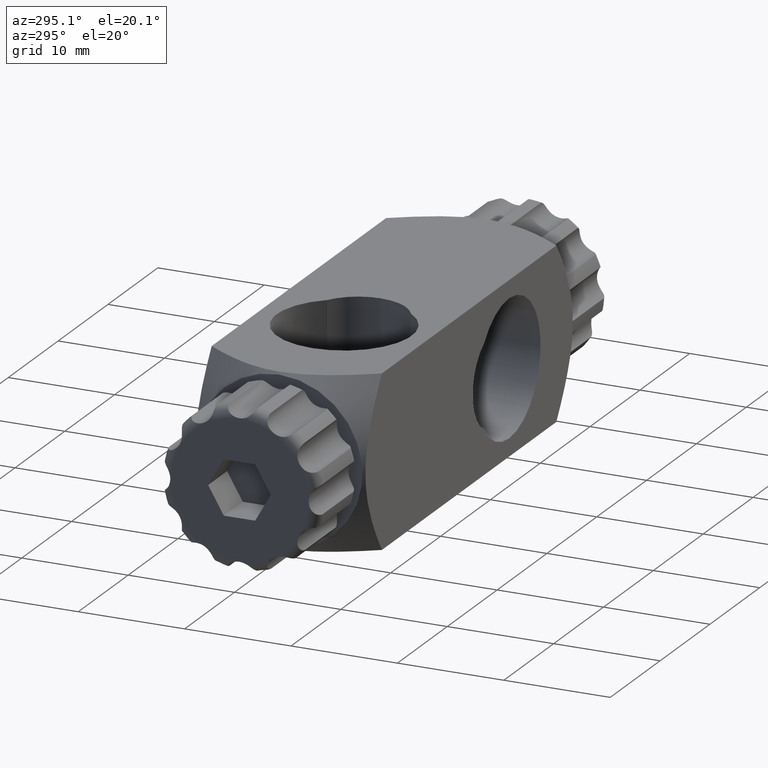
[diagram: clean part render]
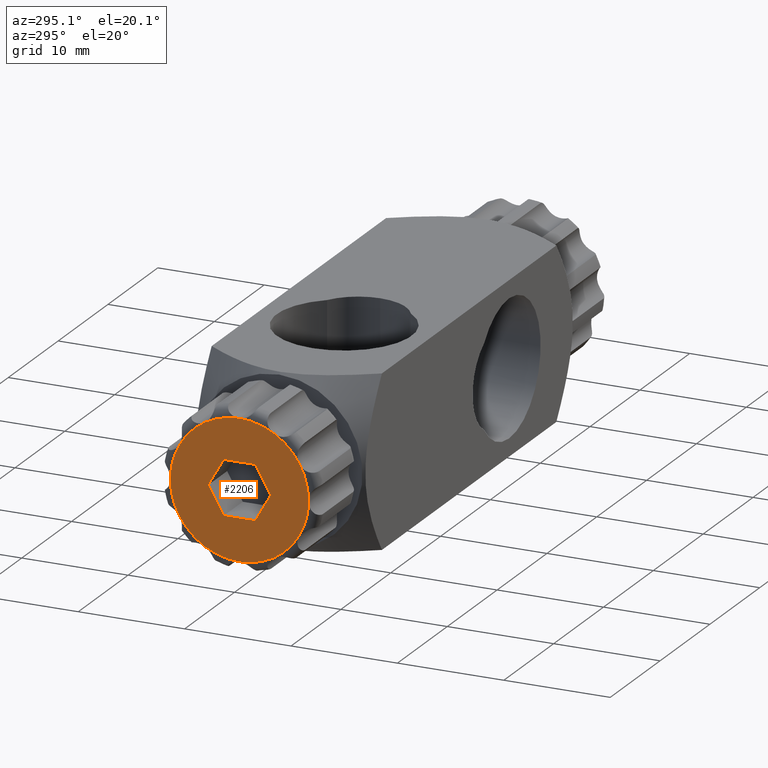
[diagram: same view with one face highlighted and labeled with its STEP entity id]
A machine part, auxiliary view. The second image highlights one B-rep face of the part: STEP entity #2206.
In plain terms, the highlighted planar face has unit normal (1, 0, 0).
Its self-contained STEP definition (entity closure, byte-faithful):
#2 = DIRECTION ( 'NONE',  ( 1.479114197289403500E-031, -1.887379141862758600E-015, -1.000000000000000000 ) ) ;
#52 = VERTEX_POINT ( 'NONE', #2938 ) ;
#57 = VERTEX_POINT ( 'NONE', #3000 ) ;
#106 = LINE ( 'NONE', #5029, #5049 ) ;
#126 = LINE ( 'NONE', #1839, #4849 ) ;
#131 = DIRECTION ( 'NONE',  ( -2.958228394578794300E-031, -1.000000000000000000, -1.942890293094019200E-015 ) ) ;
#216 = DIRECTION ( 'NONE',  ( 0.0000000000000000000, 1.887379141862758600E-015, 1.000000000000000000 ) ) ;
#262 = DIRECTION ( 'NONE',  ( 0.0000000000000000000, 1.887379141862758600E-015, 1.000000000000000000 ) ) ;
#286 = EDGE_CURVE ( 'NONE', #2716, #3194, #126, .T. ) ;
#357 = DIRECTION ( 'NONE',  ( 0.0000000000000000000, 1.887379141862758600E-015, 1.000000000000000000 ) ) ;
#407 = ORIENTED_EDGE ( 'NONE', *, *, #3444, .F. ) ;
#488 = LINE ( 'NONE', #1284, #2772 ) ;
#493 = DIRECTION ( 'NONE',  ( 2.958228394578794300E-031, 1.000000000000000000, 1.942890293094019200E-015 ) ) ;
#494 = VERTEX_POINT ( 'NONE', #3012 ) ;
#502 = CARTESIAN_POINT ( 'NONE',  ( -29.00000000000000000, -1.915837744194085800E-044, 8.210733189403225000E-045 ) ) ;
#513 = EDGE_CURVE ( 'NONE', #5242, #57, #1566, .T. ) ;
#551 = CARTESIAN_POINT ( 'NONE',  ( -29.00000000000000400, -1.368455531567204200E-045, 1.368455531567204200E-044 ) ) ;
#613 = ORIENTED_EDGE ( 'NONE', *, *, #4882, .T. ) ;
#619 = CARTESIAN_POINT ( 'NONE',  ( -28.99999999999999600, 3.250000000000002700, 5.629165124598876500 ) ) ;
#660 = CIRCLE ( 'NONE', #1508, 6.500000000000017800 ) ;
#862 = ORIENTED_EDGE ( 'NONE', *, *, #4534, .T. ) ;
#932 = ORIENTED_EDGE ( 'NONE', *, *, #513, .T. ) ;
#951 = VERTEX_POINT ( 'NONE', #3703 ) ;
#1019 = CARTESIAN_POINT ( 'NONE',  ( -29.00000000000000400, -1.368455531567204200E-045, 1.368455531567204200E-044 ) ) ;
#1035 = EDGE_CURVE ( 'NONE', #3194, #494, #1501, .T. ) ;
#1114 = DIRECTION ( 'NONE',  ( -1.000000000000000000, -2.958228394578804800E-031, 9.860761315262730800E-032 ) ) ;
#1125 = DIRECTION ( 'NONE',  ( 0.0000000000000000000, 1.887379141862758600E-015, 1.000000000000000000 ) ) ;
#1164 = EDGE_CURVE ( 'NONE', #494, #5562, #4561, .T. ) ;
#1170 = AXIS2_PLACEMENT_3D ( 'NONE', #4532, #1812, #5007 ) ;
#1191 = DIRECTION ( 'NONE',  ( 0.0000000000000000000, 1.887379141862758600E-015, 1.000000000000000000 ) ) ;
#1215 = CARTESIAN_POINT ( 'NONE',  ( -29.00000000000000400, -1.368455531567204200E-045, 1.368455531567204200E-044 ) ) ;
#1281 = DIRECTION ( 'NONE',  ( 0.0000000000000000000, 1.887379141862758600E-015, 1.000000000000000000 ) ) ;
#1284 = CARTESIAN_POINT ( 'NONE',  ( -29.00000000000000000, 1.472243186433553900, 2.550000000000007800 ) ) ;
#1286 = EDGE_CURVE ( 'NONE', #57, #2756, #4700, .T. ) ;
#1332 = VERTEX_POINT ( 'NONE', #4215 ) ;
#1375 = CARTESIAN_POINT ( 'NONE',  ( -28.99999999999999600, 1.472243186433545500, -2.550000000000008700 ) ) ;
#1414 = VERTEX_POINT ( 'NONE', #4656 ) ;
#1463 = AXIS2_PLACEMENT_3D ( 'NONE', #3913, #5766, #1191 ) ;
#1501 = LINE ( 'NONE', #5596, #2143 ) ;
#1508 = AXIS2_PLACEMENT_3D ( 'NONE', #551, #4160, #5550 ) ;
#1551 = ORIENTED_EDGE ( 'NONE', *, *, #2012, .F. ) ;
#1566 = CIRCLE ( 'NONE', #4386, 6.500000000000017800 ) ;
#1578 = CARTESIAN_POINT ( 'NONE',  ( -29.00000000000000400, -1.368455531567204200E-045, 1.368455531567204200E-044 ) ) ;
#1602 = CIRCLE ( 'NONE', #5323, 6.500000000000017800 ) ;
#1608 = ORIENTED_EDGE ( 'NONE', *, *, #286, .F. ) ;
#1645 = VERTEX_POINT ( 'NONE', #4802 ) ;
#1679 = CARTESIAN_POINT ( 'NONE',  ( -29.00000000000000400, -1.368455531567204200E-045, 1.368455531567204200E-044 ) ) ;
#1746 = ORIENTED_EDGE ( 'NONE', *, *, #1286, .T. ) ;
#1802 = ORIENTED_EDGE ( 'NONE', *, *, #3236, .F. ) ;
#1812 = DIRECTION ( 'NONE',  ( -1.000000000000000000, -2.958228394578804800E-031, 9.860761315262730800E-032 ) ) ;
#1839 = CARTESIAN_POINT ( 'NONE',  ( -28.99999999999999600, 2.944486372867102500, -2.168404344971016000E-015 ) ) ;
#1982 = AXIS2_PLACEMENT_3D ( 'NONE', #4342, #3414, #1125 ) ;
#2012 = EDGE_CURVE ( 'NONE', #951, #2716, #488, .T. ) ;
#2092 = EDGE_CURVE ( 'NONE', #2756, #1332, #4326, .T. ) ;
#2094 = CARTESIAN_POINT ( 'NONE',  ( -29.00000000000000000, -1.472243186433551000, -2.550000000000028700 ) ) ;
#2123 = VECTOR ( 'NONE', #5545, 999.9999999999998900 ) ;
#2143 = VECTOR ( 'NONE', #131, 1000.000000000000000 ) ;
#2180 = DIRECTION ( 'NONE',  ( -1.000000000000000000, -2.958228394578804800E-031, 9.860761315262730800E-032 ) ) ;
#2206 = ADVANCED_FACE ( 'NONE', ( #5260, #4918 ), #2743, .F. ) ;
#2268 = ORIENTED_EDGE ( 'NONE', *, *, #1164, .F. ) ;
#2288 = VECTOR ( 'NONE', #3804, 1000.000000000000100 ) ;
#2323 = EDGE_CURVE ( 'NONE', #2824, #3666, #2634, .T. ) ;
#2387 = CARTESIAN_POINT ( 'NONE',  ( -28.99999999999999600, 5.629165124598898700, -3.249999999999932900 ) ) ;
#2477 = VERTEX_POINT ( 'NONE', #4914 ) ;
#2582 = CARTESIAN_POINT ( 'NONE',  ( -29.00000000000000400, 5.767955557622884900E-014, -6.500000000000032000 ) ) ;
#2593 = DIRECTION ( 'NONE',  ( 0.0000000000000000000, 1.887379141862758600E-015, 1.000000000000000000 ) ) ;
#2634 = CIRCLE ( 'NONE', #1982, 6.500000000000017800 ) ;
#2716 = VERTEX_POINT ( 'NONE', #3795 ) ;
#2743 = PLANE ( 'NONE',  #5462 ) ;
#2756 = VERTEX_POINT ( 'NONE', #619 ) ;
#2772 = VECTOR ( 'NONE', #4517, 1000.000000000000100 ) ;
#2795 = ORIENTED_EDGE ( 'NONE', *, *, #4717, .T. ) ;
#2796 = DIRECTION ( 'NONE',  ( 1.000000000000000000, 2.958228394578809200E-031, 1.479114197289397800E-031 ) ) ;
#2810 = EDGE_CURVE ( 'NONE', #1645, #5869, #4116, .T. ) ;
#2824 = VERTEX_POINT ( 'NONE', #4780 ) ;
#2853 = DIRECTION ( 'NONE',  ( 0.0000000000000000000, 1.887379141862758600E-015, 1.000000000000000000 ) ) ;
#2938 = CARTESIAN_POINT ( 'NONE',  ( -29.00000000000000400, -3.249999999999964900, -5.629165124598924500 ) ) ;
#3000 = CARTESIAN_POINT ( 'NONE',  ( -29.00000000000000000, -1.474514954580285100E-014, 6.500000000000007100 ) ) ;
#3011 = DIRECTION ( 'NONE',  ( 0.0000000000000000000, 1.887379141862758600E-015, 1.000000000000000000 ) ) ;
#3012 = CARTESIAN_POINT ( 'NONE',  ( -29.00000000000000000, -1.472243186433551000, -2.550000000000028700 ) ) ;
#3179 = CIRCLE ( 'NONE', #4491, 6.500000000000017800 ) ;
#3194 = VERTEX_POINT ( 'NONE', #1375 ) ;
#3236 = EDGE_CURVE ( 'NONE', #2477, #951, #106, .T. ) ;
#3241 = EDGE_CURVE ( 'NONE', #52, #3954, #5182, .T. ) ;
#3357 = AXIS2_PLACEMENT_3D ( 'NONE', #1215, #4383, #3011 ) ;
#3381 = VERTEX_POINT ( 'NONE', #2387 ) ;
#3414 = DIRECTION ( 'NONE',  ( -1.000000000000000000, -2.958228394578804800E-031, 9.860761315262730800E-032 ) ) ;
#3444 = EDGE_CURVE ( 'NONE', #5562, #2477, #3883, .T. ) ;
#3548 = CARTESIAN_POINT ( 'NONE',  ( -29.00000000000000400, -1.368455531567204200E-045, 1.368455531567204200E-044 ) ) ;
#3666 = VERTEX_POINT ( 'NONE', #3973 ) ;
#3703 = CARTESIAN_POINT ( 'NONE',  ( -29.00000000000000000, 1.472243186433553900, 2.550000000000007800 ) ) ;
#3706 = AXIS2_PLACEMENT_3D ( 'NONE', #1578, #5246, #216 ) ;
#3725 = AXIS2_PLACEMENT_3D ( 'NONE', #3952, #2180, #2593 ) ;
#3795 = CARTESIAN_POINT ( 'NONE',  ( -28.99999999999999600, 2.944486372867102500, -2.168404344971016000E-015 ) ) ;
#3798 = ORIENTED_EDGE ( 'NONE', *, *, #5183, .T. ) ;
#3804 = DIRECTION ( 'NONE',  ( -1.972152263052539600E-031, -0.4999999999999987200, 0.8660254037844392600 ) ) ;
#3835 = CARTESIAN_POINT ( 'NONE',  ( -29.00000000000000400, -1.368455531567204200E-045, 1.368455531567204200E-044 ) ) ;
#3862 = CIRCLE ( 'NONE', #1463, 6.500000000000017800 ) ;
#3877 = EDGE_LOOP ( 'NONE', ( #1608, #1551, #1802, #407, #2268, #4078 ) ) ;
#3883 = LINE ( 'NONE', #4636, #2123 ) ;
#3913 = CARTESIAN_POINT ( 'NONE',  ( -29.00000000000000400, -1.368455531567204200E-045, 1.368455531567204200E-044 ) ) ;
#3952 = CARTESIAN_POINT ( 'NONE',  ( -29.00000000000000400, -1.368455531567204200E-045, 1.368455531567204200E-044 ) ) ;
#3954 = VERTEX_POINT ( 'NONE', #4099 ) ;
#3973 = CARTESIAN_POINT ( 'NONE',  ( -29.00000000000000400, -5.629170143903000000, 3.249991306377376400 ) ) ;
#4004 = DIRECTION ( 'NONE',  ( -1.000000000000000000, -2.958228394578804800E-031, 9.860761315262730800E-032 ) ) ;
#4006 = DIRECTION ( 'NONE',  ( -1.000000000000000000, -2.958228394578804800E-031, 9.860761315262730800E-032 ) ) ;
#4078 = ORIENTED_EDGE ( 'NONE', *, *, #1035, .F. ) ;
#4099 = CARTESIAN_POINT ( 'NONE',  ( -29.00000000000000400, -5.629165124598841900, -3.250000000000086200 ) ) ;
#4116 = CIRCLE ( 'NONE', #3706, 6.500000000000017800 ) ;
#4138 = DIRECTION ( 'NONE',  ( -1.000000000000000000, -2.958228394578804800E-031, 9.860761315262730800E-032 ) ) ;
#4160 = DIRECTION ( 'NONE',  ( -1.000000000000000000, -2.958228394578804800E-031, 9.860761315262730800E-032 ) ) ;
#4162 = ORIENTED_EDGE ( 'NONE', *, *, #2810, .T. ) ;
#4215 = CARTESIAN_POINT ( 'NONE',  ( -29.00000000000000400, 5.629165124598868500, 3.250000000000008900 ) ) ;
#4264 = DIRECTION ( 'NONE',  ( -1.000000000000000000, -2.958228394578804800E-031, 9.860761315262730800E-032 ) ) ;
#4325 = ORIENTED_EDGE ( 'NONE', *, *, #2323, .T. ) ;
#4326 = CIRCLE ( 'NONE', #1170, 6.500000000000017800 ) ;
#4342 = CARTESIAN_POINT ( 'NONE',  ( -29.00000000000000400, -1.368455531567204200E-045, 1.368455531567204200E-044 ) ) ;
#4383 = DIRECTION ( 'NONE',  ( -1.000000000000000000, -2.958228394578804800E-031, 9.860761315262730800E-032 ) ) ;
#4386 = AXIS2_PLACEMENT_3D ( 'NONE', #3548, #4006, #1281 ) ;
#4491 = AXIS2_PLACEMENT_3D ( 'NONE', #1679, #4004, #357 ) ;
#4517 = DIRECTION ( 'NONE',  ( 1.972152263052539600E-031, 0.4999999999999987200, -0.8660254037844392600 ) ) ;
#4531 = CIRCLE ( 'NONE', #3357, 6.500000000000017800 ) ;
#4532 = CARTESIAN_POINT ( 'NONE',  ( -29.00000000000000400, -1.368455531567204200E-045, 1.368455531567204200E-044 ) ) ;
#4534 = EDGE_CURVE ( 'NONE', #1414, #3381, #1602, .T. ) ;
#4561 = LINE ( 'NONE', #2094, #2288 ) ;
#4636 = CARTESIAN_POINT ( 'NONE',  ( -29.00000000000000000, -2.944486372867096200, -1.908195823574488400E-014 ) ) ;
#4649 = ORIENTED_EDGE ( 'NONE', *, *, #4965, .T. ) ;
#4656 = CARTESIAN_POINT ( 'NONE',  ( -29.00000000000000000, 6.500000000000010700, -2.168404344971016000E-015 ) ) ;
#4660 = CIRCLE ( 'NONE', #5788, 6.500000000000017800 ) ;
#4700 = CIRCLE ( 'NONE', #3725, 6.500000000000017800 ) ;
#4717 = EDGE_CURVE ( 'NONE', #3381, #1645, #4531, .T. ) ;
#4780 = CARTESIAN_POINT ( 'NONE',  ( -29.00000000000000400, -6.500000000000016000, -6.852157730108389300E-014 ) ) ;
#4802 = CARTESIAN_POINT ( 'NONE',  ( -29.00000000000000400, 3.250000000000063900, -5.629165124598841000 ) ) ;
#4849 = VECTOR ( 'NONE', #5888, 999.9999999999998900 ) ;
#4882 = EDGE_CURVE ( 'NONE', #3666, #5242, #3862, .T. ) ;
#4914 = CARTESIAN_POINT ( 'NONE',  ( -29.00000000000000000, -1.472243186433544800, 2.549999999999987400 ) ) ;
#4918 = FACE_OUTER_BOUND ( 'NONE', #5518, .T. ) ;
#4940 = ORIENTED_EDGE ( 'NONE', *, *, #5752, .T. ) ;
#4965 = EDGE_CURVE ( 'NONE', #3954, #2824, #3179, .T. ) ;
#5007 = DIRECTION ( 'NONE',  ( 0.0000000000000000000, 1.887379141862758600E-015, 1.000000000000000000 ) ) ;
#5029 = CARTESIAN_POINT ( 'NONE',  ( -29.00000000000000000, -1.472243186433544800, 2.549999999999987400 ) ) ;
#5044 = CARTESIAN_POINT ( 'NONE',  ( -29.00000000000000000, -2.944486372867096200, -1.908195823574488400E-014 ) ) ;
#5049 = VECTOR ( 'NONE', #493, 1000.000000000000000 ) ;
#5059 = AXIS2_PLACEMENT_3D ( 'NONE', #5477, #4138, #5459 ) ;
#5128 = CARTESIAN_POINT ( 'NONE',  ( -29.00000000000000400, -3.250010845174207600, 5.629158863194973600 ) ) ;
#5182 = CIRCLE ( 'NONE', #5059, 6.500000000000017800 ) ;
#5183 = EDGE_CURVE ( 'NONE', #1332, #1414, #660, .T. ) ;
#5242 = VERTEX_POINT ( 'NONE', #5128 ) ;
#5246 = DIRECTION ( 'NONE',  ( -1.000000000000000000, -2.958228394578804800E-031, 9.860761315262730800E-032 ) ) ;
#5260 = FACE_BOUND ( 'NONE', #3877, .T. ) ;
#5323 = AXIS2_PLACEMENT_3D ( 'NONE', #1019, #4264, #2853 ) ;
#5459 = DIRECTION ( 'NONE',  ( 0.0000000000000000000, 1.887379141862758600E-015, 1.000000000000000000 ) ) ;
#5462 = AXIS2_PLACEMENT_3D ( 'NONE', #502, #2796, #2 ) ;
#5477 = CARTESIAN_POINT ( 'NONE',  ( -29.00000000000000400, -1.368455531567204200E-045, 1.368455531567204200E-044 ) ) ;
#5518 = EDGE_LOOP ( 'NONE', ( #862, #2795, #4162, #4940, #5687, #4649, #4325, #613, #932, #1746, #5837, #3798 ) ) ;
#5545 = DIRECTION ( 'NONE',  ( 4.930380657631249900E-032, 0.5000000000000004400, 0.8660254037844384900 ) ) ;
#5550 = DIRECTION ( 'NONE',  ( 0.0000000000000000000, 1.887379141862758600E-015, 1.000000000000000000 ) ) ;
#5562 = VERTEX_POINT ( 'NONE', #5044 ) ;
#5596 = CARTESIAN_POINT ( 'NONE',  ( -28.99999999999999600, 1.472243186433545500, -2.550000000000008700 ) ) ;
#5687 = ORIENTED_EDGE ( 'NONE', *, *, #3241, .T. ) ;
#5752 = EDGE_CURVE ( 'NONE', #5869, #52, #4660, .T. ) ;
#5766 = DIRECTION ( 'NONE',  ( -1.000000000000000000, -2.958228394578804800E-031, 9.860761315262730800E-032 ) ) ;
#5788 = AXIS2_PLACEMENT_3D ( 'NONE', #3835, #1114, #262 ) ;
#5837 = ORIENTED_EDGE ( 'NONE', *, *, #2092, .T. ) ;
#5869 = VERTEX_POINT ( 'NONE', #2582 ) ;
#5888 = DIRECTION ( 'NONE',  ( -4.930380657631249900E-032, -0.5000000000000004400, -0.8660254037844384900 ) ) ;